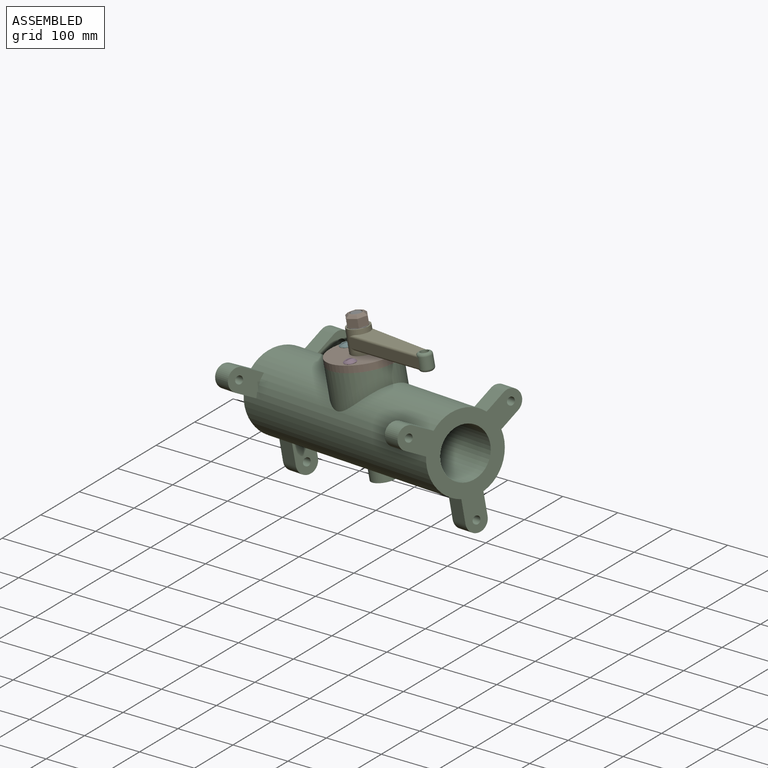
[diagram: assembled view]
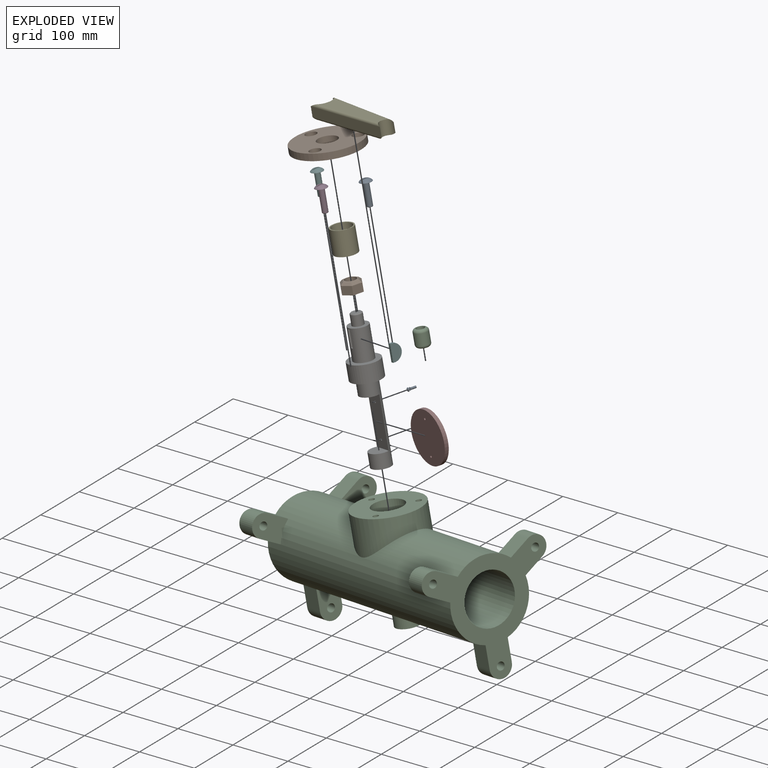
[diagram: exploded view]
GUIDED TOUR — MATED ASSEMBLY (Onshape document 84aa698ae4962fbbdf30fc7e, AutoMate assembly 84aa698ae4962fbbdf30fc7e_3a465f6433ac086dd8a9a052_34221dd035e977e115cf0c7b_default)

This assembly has 14 components, labeled P0..P13 below (a component is one placed occurrence of a part; the same part can appear more than once), held together by 12 mates. A mate is a constraint between two components; its type names the relative motion it leaves free:
  FASTENED — locks the two components together rigidly (no relative motion),
  REVOLUTE — leaves rotation about the listed axis free (a hinge).
Axis/direction vectors are unit vectors and 'through' points are millimeter coordinates, both in the assembly's world frame.

MATES
  1. FASTENED "Fastened 7": P13 <-> P6, direction (-0.916, 0.360, -0.177) through (316.12, 89.36, -572.98) mm
  2. REVOLUTE "Revolute 1": P6 <-> P10, axis (0.189, 0.000, -0.982) through (361.50, 98.34, -775.70) mm
  3. FASTENED "Fastened 5": P4 <-> P12, direction (0.189, 0.000, -0.982) through (323.03, 98.34, -576.38) mm
  4. FASTENED "Fastened 3": P3 <-> P6, direction (0.354, 0.933, 0.068) through (358.72, 110.99, -735.50) mm
  5. FASTENED "Fastened 9": P6 <-> P4, direction (-0.189, 0.000, 0.982) through (318.86, 98.34, -554.78) mm
  6. FASTENED "Fastened 11": P0 <-> P10, direction (0.189, 0.000, -0.982) through (371.18, 125.51, -628.19) mm
  7. FASTENED "Fastened 12": P5 <-> P10, direction (0.189, 0.000, -0.982) through (293.07, 114.54, -643.27) mm
  8. FASTENED "Fastened 13": P11 <-> P10, direction (0.189, 0.000, -0.982) through (343.69, 52.96, -633.50) mm
  9. FASTENED "Fastened 8": P9 <-> P10, direction (0.189, 0.000, -0.982) through (329.17, 98.33, -608.80) mm
  10. FASTENED "Fastened 1": P8 <-> P6, direction (0.354, 0.933, 0.068) through (347.35, 110.99, -676.59) mm
  11. FASTENED "Fastened 6": P2 <-> P12, direction (0.189, 0.000, -0.982) through (487.29, 33.77, -544.68) mm
  12. FASTENED "Fastened 10": P1 <-> P6, direction (0.189, 0.000, -0.982) through (318.86, 98.34, -554.78) mm

ASSEMBLY ORDER
  1. P6 — the base component [order heuristic]
  2. P9 — core [order heuristic]
  3. P10 — core [order heuristic]
  4. P7 — core [order heuristic]
  5. P4 — core [order heuristic]
  6. P13 — core [order heuristic]
  7. P12 [order verified]
  8. P3 [order verified]
  9. P8 [order verified]
  10. P5 [order verified]
  11. P0 [order verified]
  12. P11 [order verified]
  13. P2 [order verified]
  14. P1 — core [order heuristic]
(P3, P8 verified with a relaxed clearance tolerance: the source model stores slight part interference there.)
Order-tag legend:
  [order verified] — this step's position reverses a verified removal order: the component was checked to insert without passing through the ones already placed.
  [order heuristic] — the first 7 components form the assembly's core: parts whose collision-free extraction could not be verified, listed in mate-graph order.

Of the 14 components, 3 carry the full construction recipe — the FeatureScript program that regenerates the part's solid from scratch; the rest are supplied as boundary geometry only.
Because this assembly has more than 12 components, the tour below covers the 12 most significant ones individually (every recipe-attached component first, then the largest by part volume), in assembly order; the remaining 2 are summarized together in a grouped section at the end.
Each toured component is shown spotlighted twice — in the assembled view, then in the exploded view, where a leader line traces a displaced component back to its assembled socket (saturated green if recipe-attached, orange if geometry-only; every other component desaturated gray) — followed by its recipe or geometry summary and the mates that hold it.
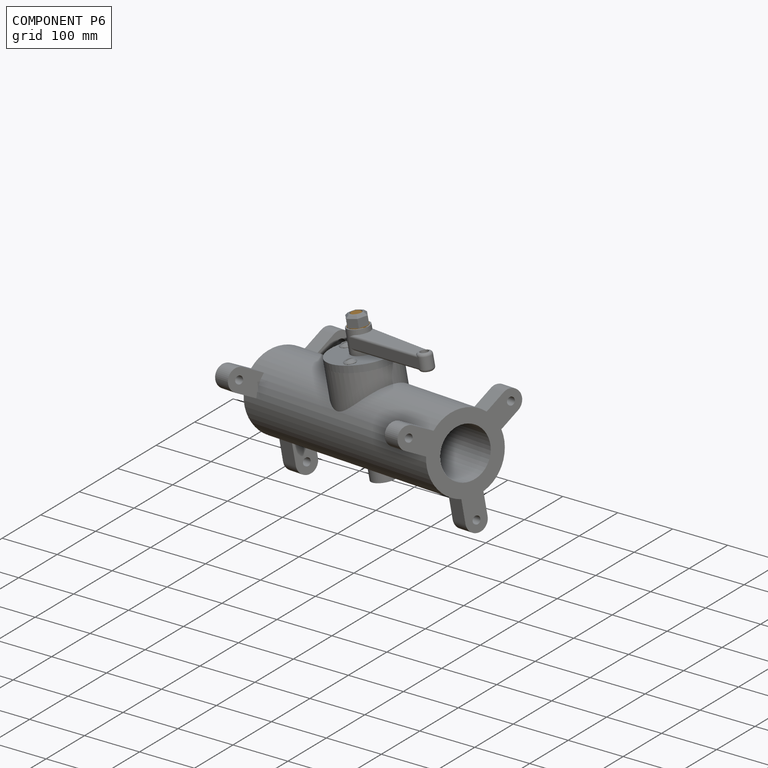
[diagram: component P6 — assembled]
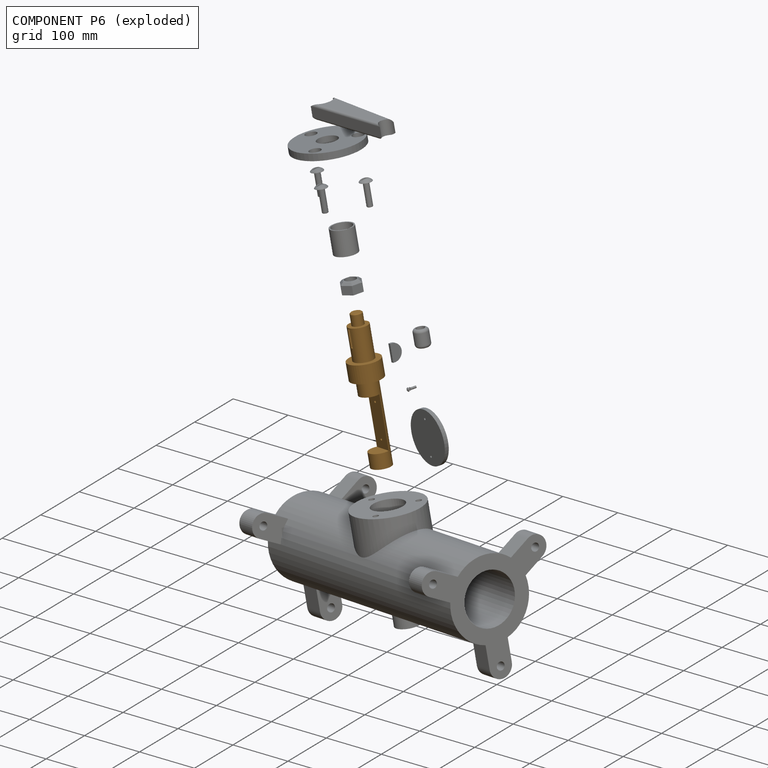
[diagram: component P6 — exploded]
COMPONENT P6 — geometry summary (no construction recipe available for this part):
  bounding box: 245.0 x 55.0 x 55.0 mm
  B-rep topology: 1 solid, 20 faces, 84 edges
  volume: 198194 mm^3 (27% of its bounding box)
  symmetry: mirror-symmetric across its z mid-plane
Held by: FASTENED mate "Fastened 7" to P13; REVOLUTE mate "Revolute 1" to P10; FASTENED mate "Fastened 3" to P3; FASTENED mate "Fastened 9" to P4; FASTENED mate "Fastened 1" to P8; FASTENED mate "Fastened 10" to P1.
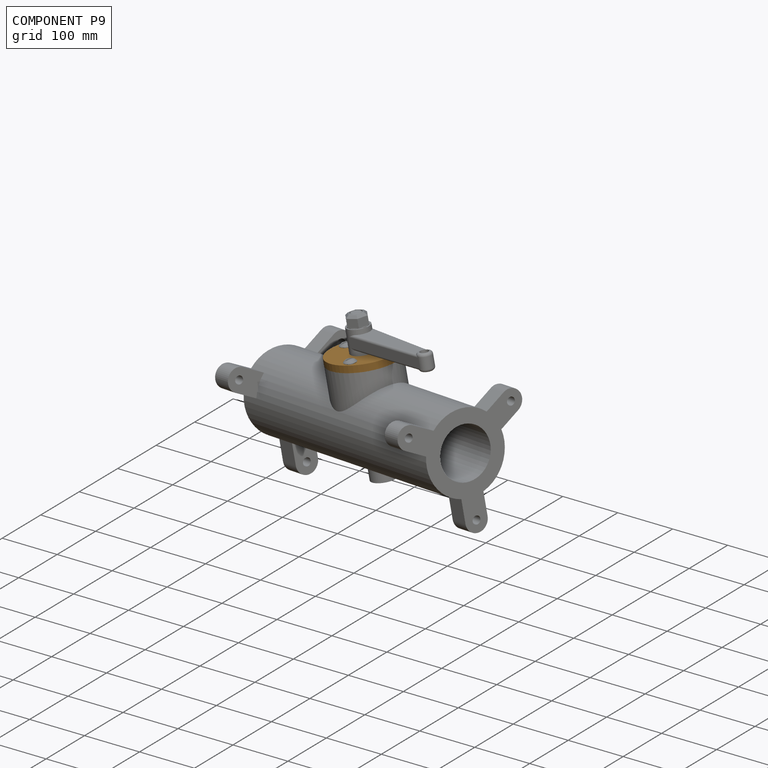
[diagram: component P9 — assembled]
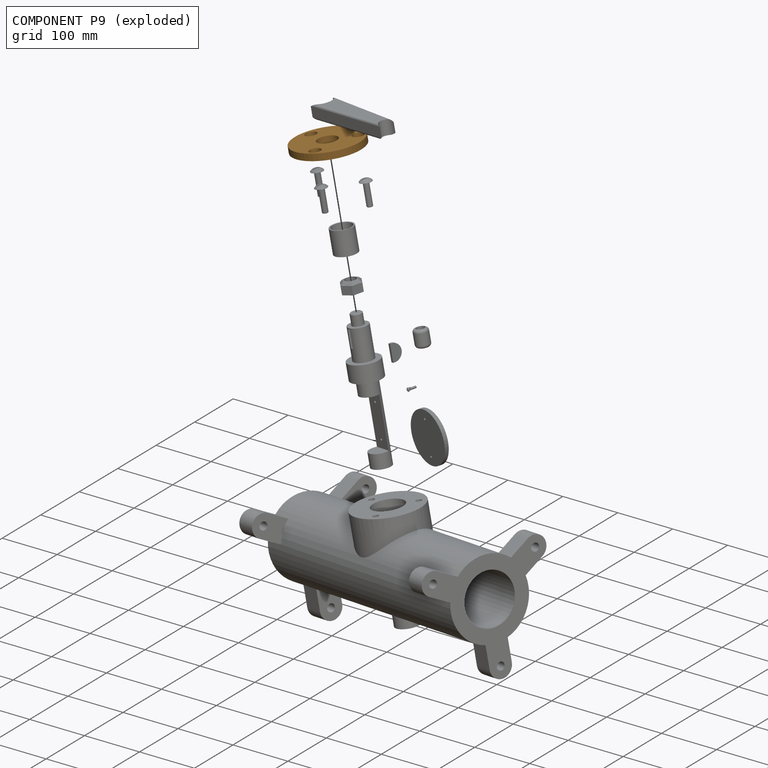
[diagram: component P9 — exploded]
COMPONENT P9 — geometry summary (no construction recipe available for this part):
  bounding box: 120.0 x 120.0 x 12.0 mm
  B-rep topology: 1 solid, 7 faces, 30 edges
  volume: 112862 mm^3 (65% of its bounding box)
  symmetry: 2-fold rotationally symmetric about the x axis; mirror-symmetric across its y mid-plane, z mid-plane
Held by: FASTENED mate "Fastened 8" to P10.
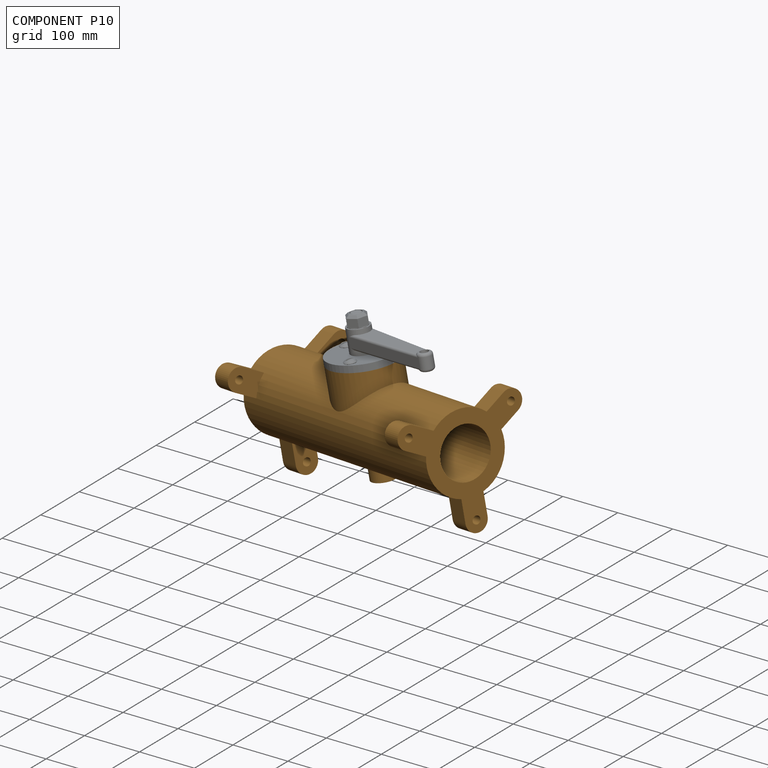
[diagram: component P10 — assembled]
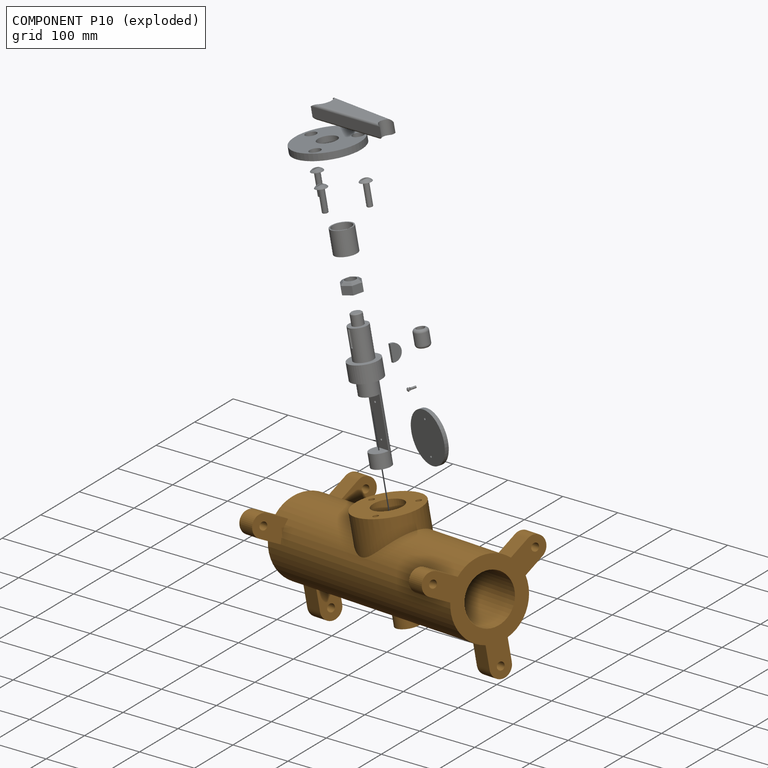
[diagram: component P10 — exploded]
COMPONENT P10 — geometry summary (no construction recipe available for this part):
  bounding box: 500.0 x 226.6 x 224.7 mm
  B-rep topology: 1 solid, 48 faces, 262 edges
  volume: 5248739 mm^3 (21% of its bounding box)
  symmetry: mirror-symmetric across its z mid-plane
Held by: REVOLUTE mate "Revolute 1" to P6; FASTENED mate "Fastened 11" to P0; FASTENED mate "Fastened 12" to P5; FASTENED mate "Fastened 13" to P11; FASTENED mate "Fastened 8" to P9.
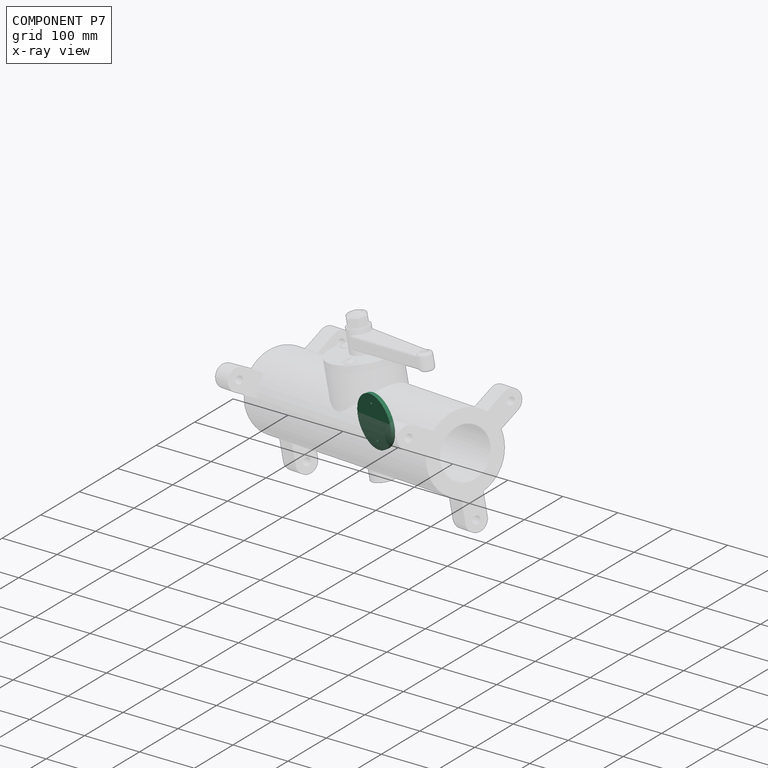
[diagram: component P7 — x-ray view]
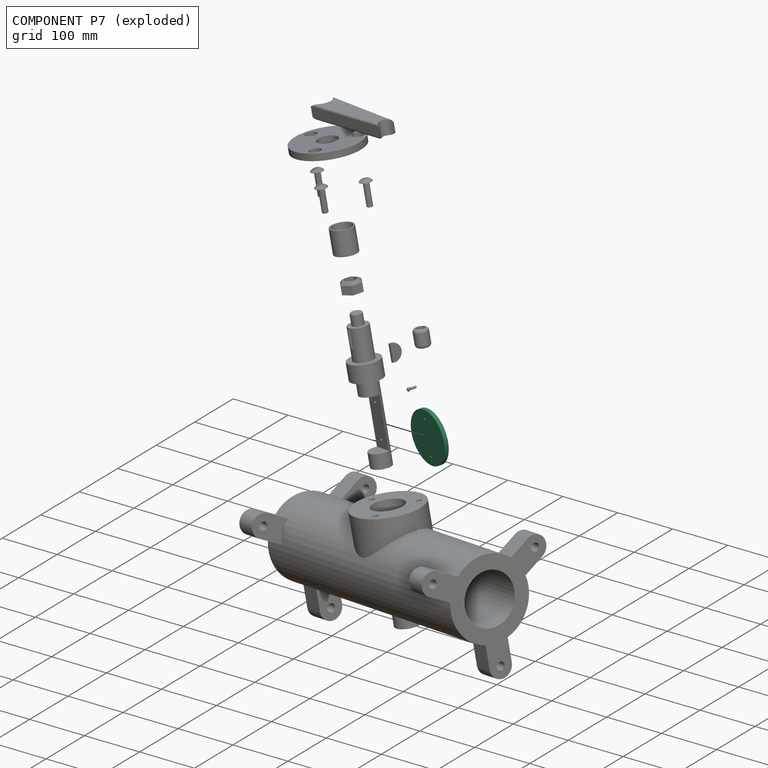
[diagram: component P7 — exploded]
COMPONENT P7 — recipe-attached (CADFS 00137516, mesh-verified: the recipe's output STEP matches this component's geometry to below the mesh-comparison resolution (tessellation chordal tolerance ~0.191 mm)).
Held by: no mates (free).
Construction recipe (FeatureScript — the CAD program that rebuilds this solid; sketch coordinates are in the units given by the * unit suffixes, e.g. mm):

FeatureScript 1549;
import(path : "onshape/std/geometry.fs", version : "1549.0");
import(path : "onshape/std/common.fs", version : "1549.0");
const mm = millimeter;
const VERTEX = EntityType.VERTEX;
const EDGE = EntityType.EDGE;
const FACE = EntityType.FACE;
const BODY = EntityType.BODY;
function v(x, y){return vector(x, y);}
function OD(order){return orderDisambiguation(order);}
function OSD(set){return originalSetDisambiguation(set);}
function TD(topology){return topologyDisambiguation(topology);}
function TDD(query){return trueDependencyDisambiguation(query);}
function sQuery(a, b, c) {return sketchEntityQuery(a, b, c);}

annotation { "Feature Type Name" : "Feature", "Feature Type Description" : "" }
export const myFeature = defineFeature(function(context is Context, id is Id, definition is map)
    precondition{}
    {
        {
            var Q0;
            Q0=qCreatedBy(makeId("Front.planeOp"),FACE);
            var sketch = newSketch(context, id + "F0", { "sketchPlane" : qUnion([Q0])});
            skCircle(sketch, "E0", {"center": v(0, 0) * mm, "radius": 45 * mm});
            skLineSegment(sketch, "E1", {"start": v(-28, 0) * mm, "end": v(-30, 0) * mm});
            skCircle(sketch, "E2", {"center": v(-30, 0) * mm, "radius": 2 * mm});
            skCircle(sketch, "E3", {"center": v(30, 0) * mm, "radius": 2 * mm});
            skLineSegment(sketch, "E4.trimOffspring", {"start": v(28, 0) * mm, "end": v(30, 0) * mm});
            skLineSegment(sketch, "E5", {"start": v(-45, 0) * mm, "end": v(45, 0) * mm});
            skSolve(sketch);
        }
        {
            var Q0;
            {var subQ0=sQuery(id+"F0.wireOp",EDGE,"E5");var subQ1=sQuery(id+"F0.wireOp",EDGE,"E0");var subQ2=makeQuery(id+"F0.imprint","INTERSECT",VERTEX,{"disambiguationData":[OD(0.0)],"derivedFrom":[subQ1,subQ0]});Q0=makeQuery(id+"F0.imprint","IMPRINT",FACE,{"disambiguationData":[TD([[makeQuery(id+"F0.imprint","IMPRINT",EDGE,{"disambiguationData":[TD([[subQ2,1.0]])],"derivedFrom":subQ1}),1.0]])]});}
            var Q1;
            {var subQ0=sQuery(id+"F0.wireOp",EDGE,"E5");var subQ1=sQuery(id+"F0.wireOp",EDGE,"E0");var subQ2=makeQuery(id+"F0.imprint","INTERSECT",VERTEX,{"disambiguationData":[OD(0.0)],"derivedFrom":[subQ1,subQ0]});Q1=makeQuery(id+"F0.imprint","IMPRINT",FACE,{"disambiguationData":[TD([[makeQuery(id+"F0.imprint","IMPRINT",EDGE,{"disambiguationData":[TD([[subQ2,-1.0]])],"derivedFrom":subQ1}),1.0]])]});}
            extrude(context, id + "F1", {"entities" : qUnion([Q0, Q1]), "depth" : 7 * mm, "symmetric" : true});
        }
    });
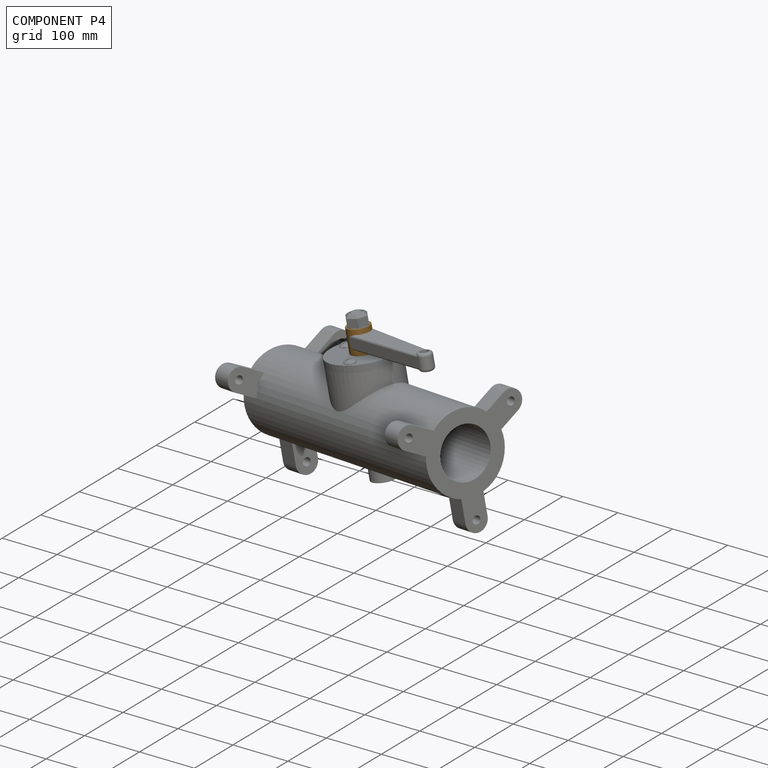
[diagram: component P4 — assembled]
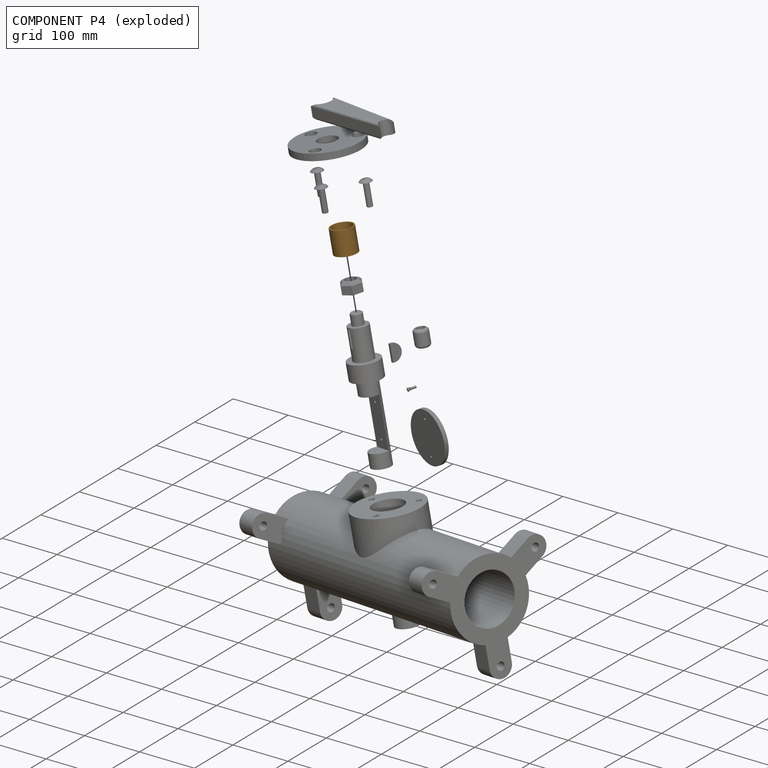
[diagram: component P4 — exploded]
COMPONENT P4 — geometry summary (no construction recipe available for this part):
  bounding box: 42.0 x 40.0 x 40.0 mm
  B-rep topology: 1 solid, 10 faces, 48 edges
  volume: 12041 mm^3 (18% of its bounding box)
  symmetry: 2-fold rotationally symmetric about the x axis; mirror-symmetric across its y mid-plane, z mid-plane
Held by: FASTENED mate "Fastened 5" to P12; FASTENED mate "Fastened 9" to P6.
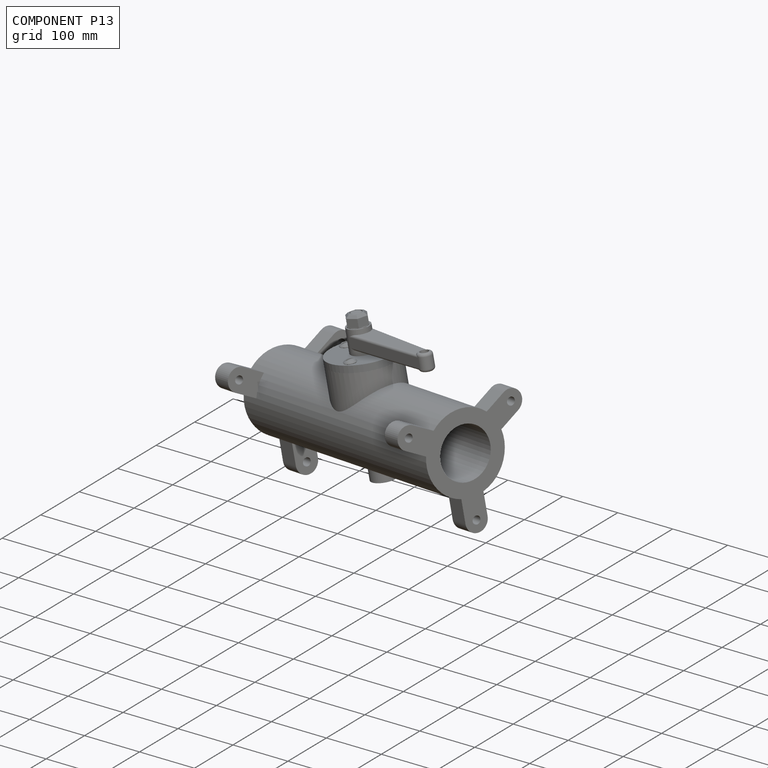
[diagram: component P13 — assembled]
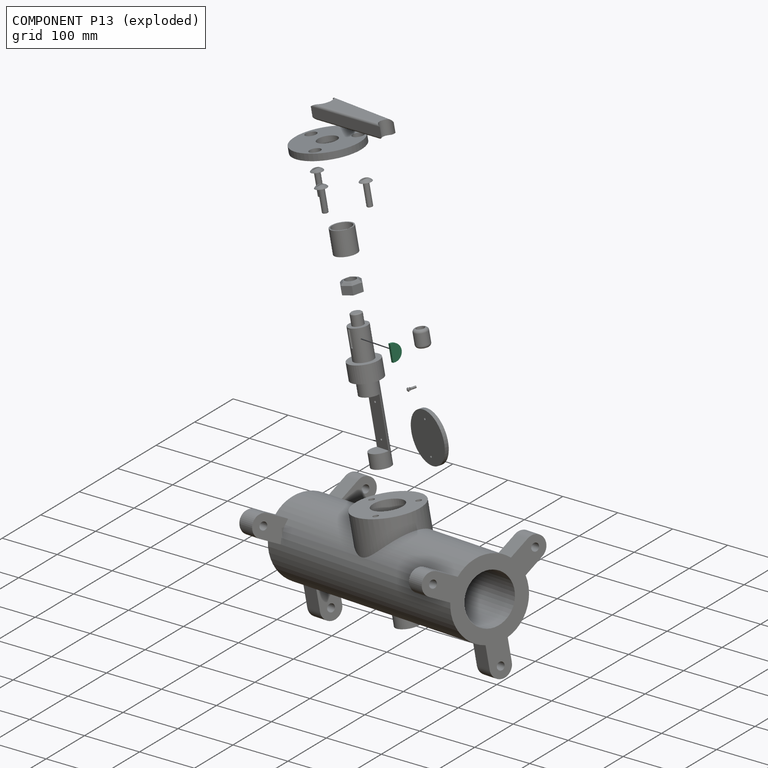
[diagram: component P13 — exploded]
COMPONENT P13 — recipe-attached (CADFS 00137511, mesh-verified: the recipe's output STEP matches this component's geometry to below the mesh-comparison resolution (tessellation chordal tolerance ~0.053 mm)).
Held by: FASTENED mate "Fastened 7" to P6.
Construction recipe (FeatureScript — the CAD program that rebuilds this solid; sketch coordinates are in the units given by the * unit suffixes, e.g. mm):

FeatureScript 1549;
import(path : "onshape/std/geometry.fs", version : "1549.0");
import(path : "onshape/std/common.fs", version : "1549.0");
const mm = millimeter;
const VERTEX = EntityType.VERTEX;
const EDGE = EntityType.EDGE;
const FACE = EntityType.FACE;
const BODY = EntityType.BODY;
function v(x, y){return vector(x, y);}
function OD(order){return orderDisambiguation(order);}
function OSD(set){return originalSetDisambiguation(set);}
function TD(topology){return topologyDisambiguation(topology);}
function TDD(query){return trueDependencyDisambiguation(query);}
function sQuery(a, b, c) {return sketchEntityQuery(a, b, c);}

annotation { "Feature Type Name" : "Feature", "Feature Type Description" : "" }
export const myFeature = defineFeature(function(context is Context, id is Id, definition is map)
    precondition{}
    {
        {
            var Q0;
            Q0=qCreatedBy(makeId("Front.planeOp"),FACE);
            var sketch = newSketch(context, id + "F0", { "sketchPlane" : qUnion([Q0])});
            skLineSegment(sketch, "E0", {"start": v(0, 0) * mm, "end": v(15, 0) * mm});
            skLineSegment(sketch, "E1", {"start": v(15, 0) * mm, "end": v(-15, 0) * mm});
            skLineSegment(sketch, "E2", {"start": v(-15, 0) * mm, "end": v(-15, 3) * mm});
            skLineSegment(sketch, "E3", {"start": v(-15, 3) * mm, "end": v(15, 3) * mm});
            skLineSegment(sketch, "E4", {"start": v(15, 3) * mm, "end": v(15, 0) * mm});
            skArc(sketch, "E5", {"start": v(-15, 0) * mm, "mid": v(0, -15) * mm, "end": v(15, 0) * mm});
            skSolve(sketch);
        }
        {
            var Q0;
            Q0 = qSketchRegion(id + "F0", true);
            extrude(context, id + "F1", {"entities" : qUnion([Q0]), "depth" : 5 * mm, "symmetric" : true});
        }
    });
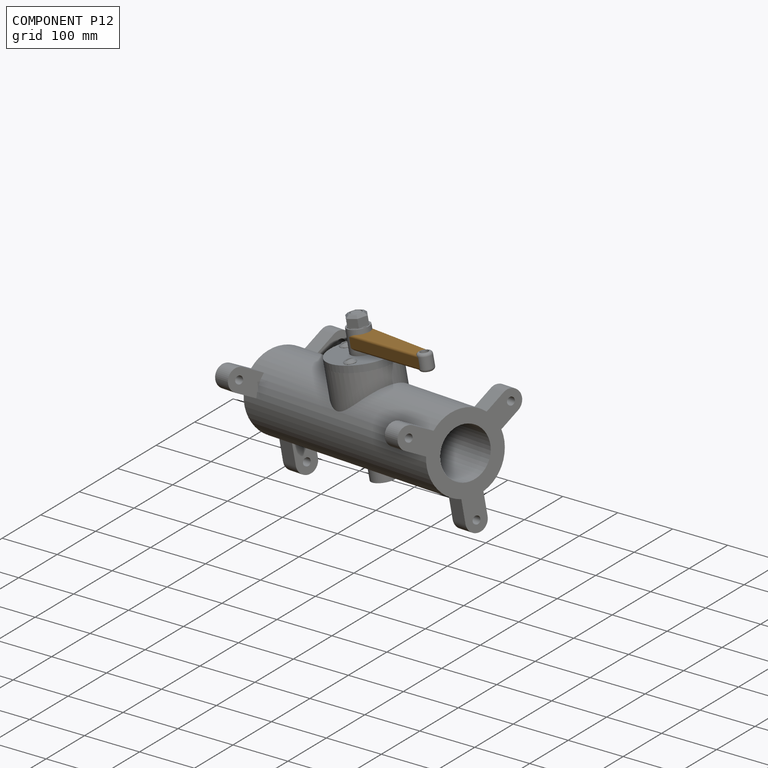
[diagram: component P12 — assembled]
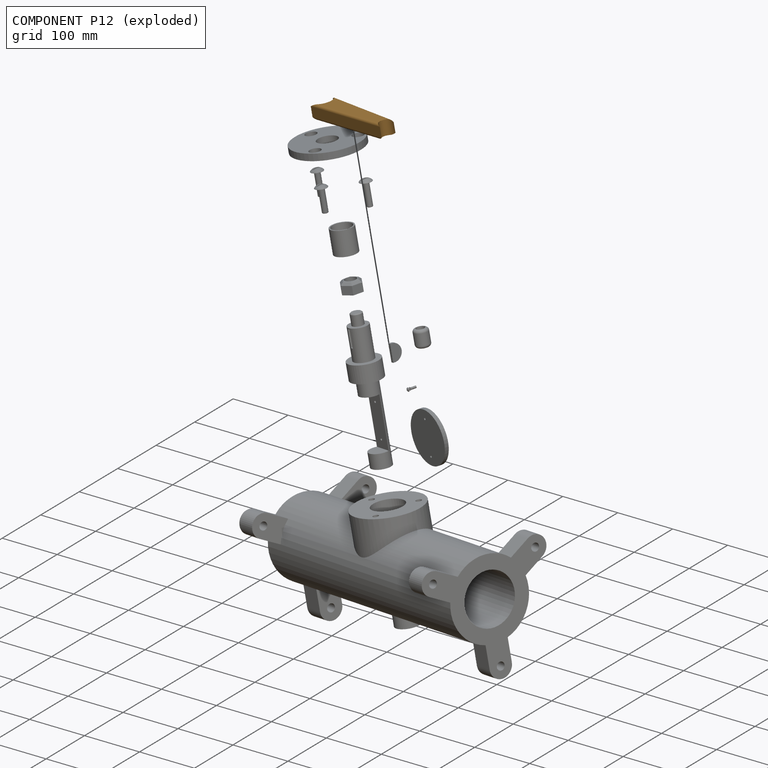
[diagram: component P12 — exploded]
COMPONENT P12 — geometry summary (no construction recipe available for this part):
  bounding box: 178.3 x 39.9 x 25.0 mm
  B-rep topology: 1 solid, 10 faces, 48 edges
  volume: 121575 mm^3 (68% of its bounding box)
  symmetry: 2-fold rotationally symmetric about the x axis; mirror-symmetric across its y mid-plane, z mid-plane
Held by: FASTENED mate "Fastened 5" to P4; FASTENED mate "Fastened 6" to P2.
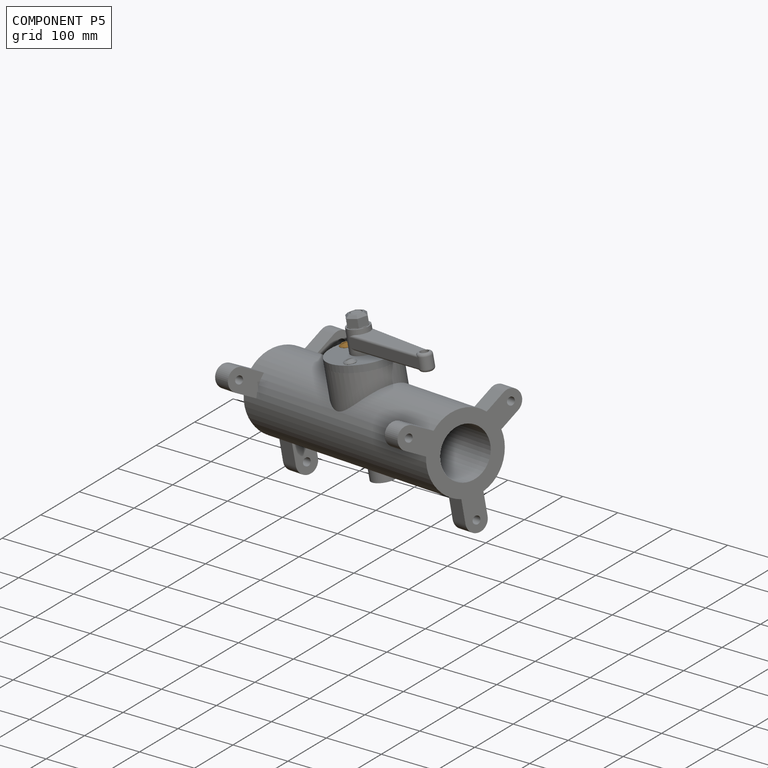
[diagram: component P5 — assembled]
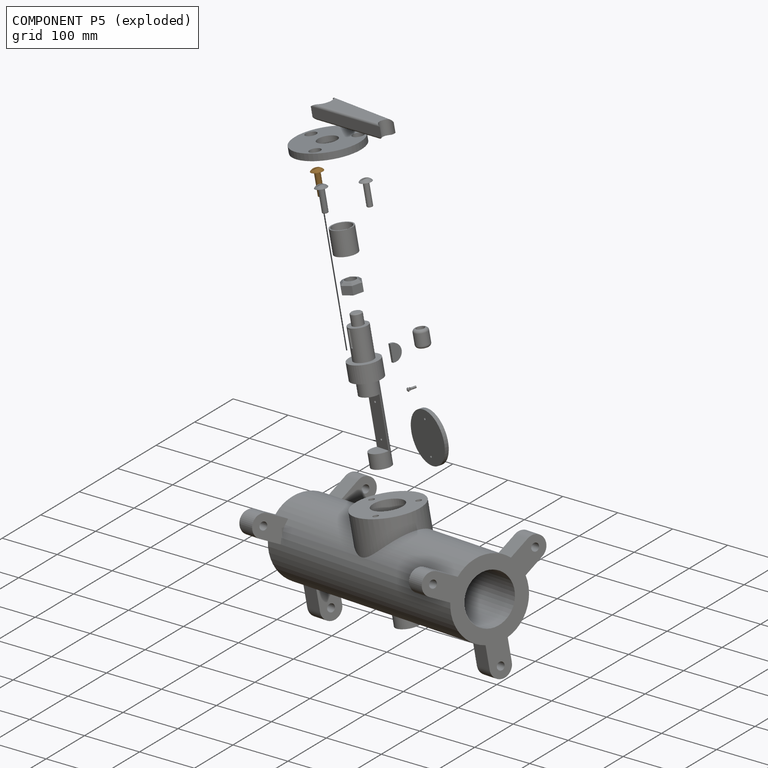
[diagram: component P5 — exploded]
COMPONENT P5 — geometry summary (no construction recipe available for this part):
  bounding box: 45.0 x 21.7 x 21.7 mm
  B-rep topology: 1 solid, 9 faces, 34 edges
  volume: 4163 mm^3 (20% of its bounding box)
  symmetry: 2-fold rotationally symmetric about the x axis; mirror-symmetric across its y mid-plane, z mid-plane
Held by: FASTENED mate "Fastened 12" to P10.
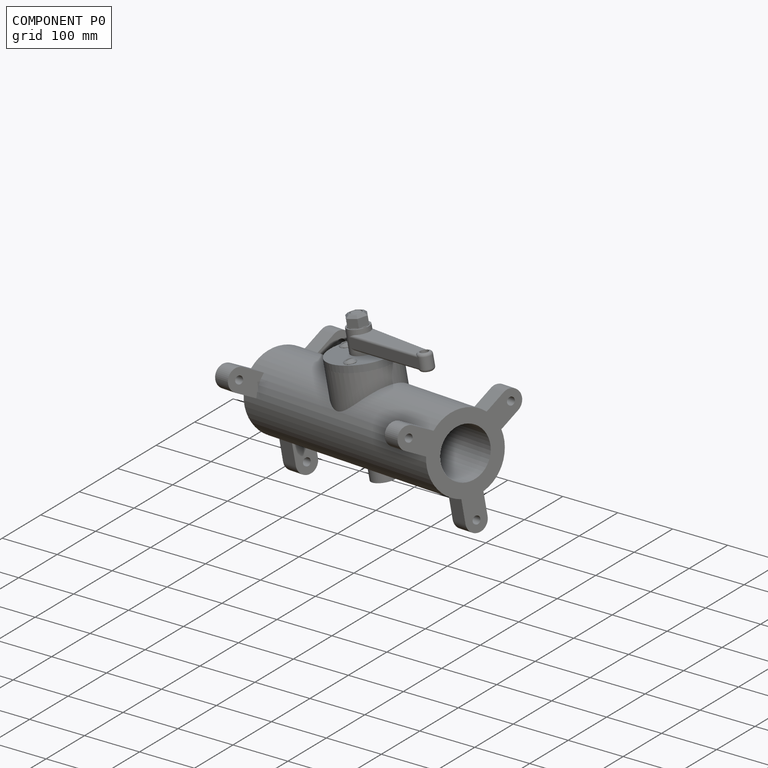
[diagram: component P0 — assembled]
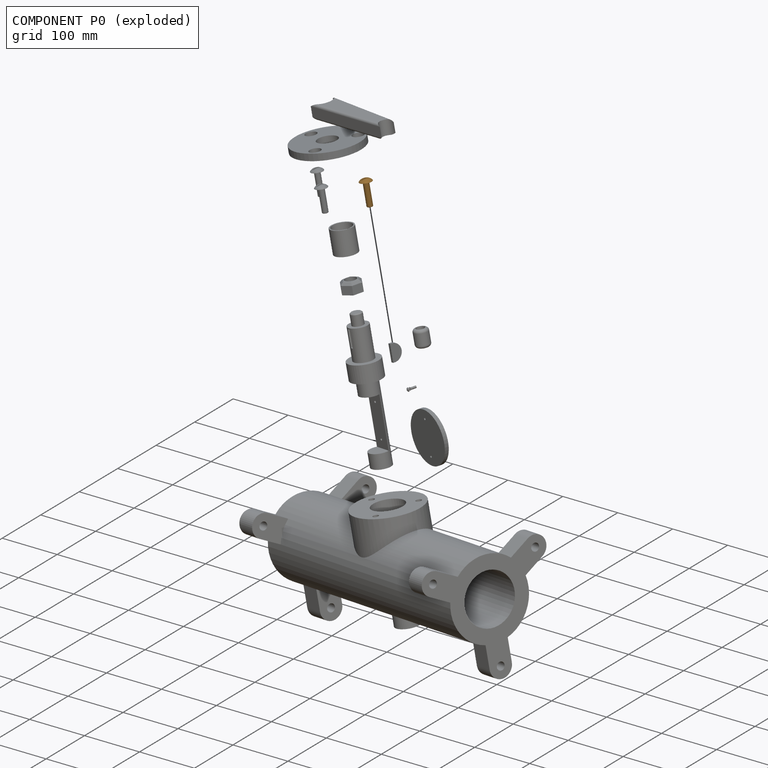
[diagram: component P0 — exploded]
COMPONENT P0 — geometry summary (no construction recipe available for this part):
  bounding box: 45.0 x 21.7 x 21.7 mm
  B-rep topology: 1 solid, 9 faces, 34 edges
  volume: 4163 mm^3 (20% of its bounding box)
  symmetry: 2-fold rotationally symmetric about the x axis; mirror-symmetric across its y mid-plane, z mid-plane
Held by: FASTENED mate "Fastened 11" to P10.
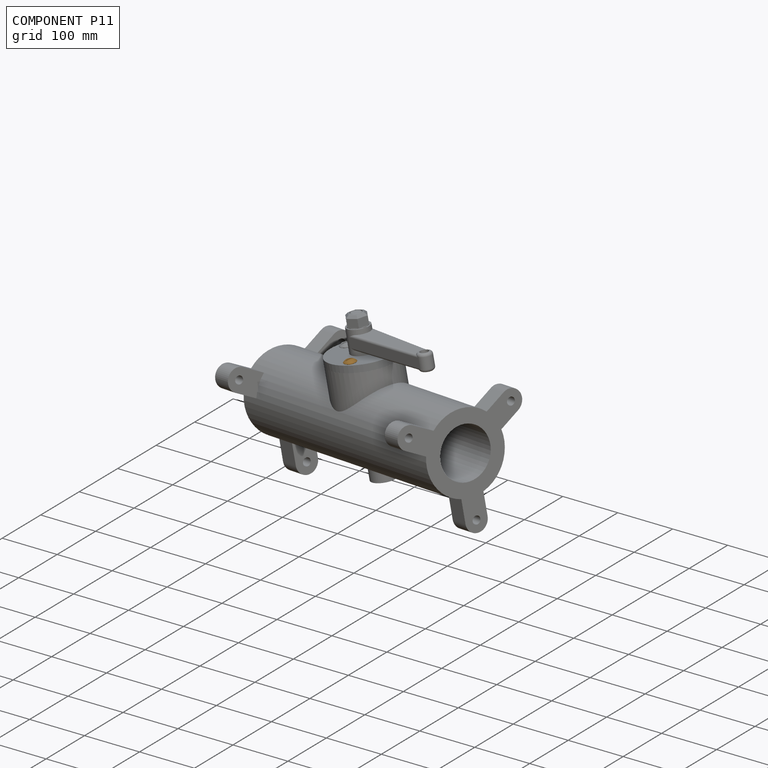
[diagram: component P11 — assembled]
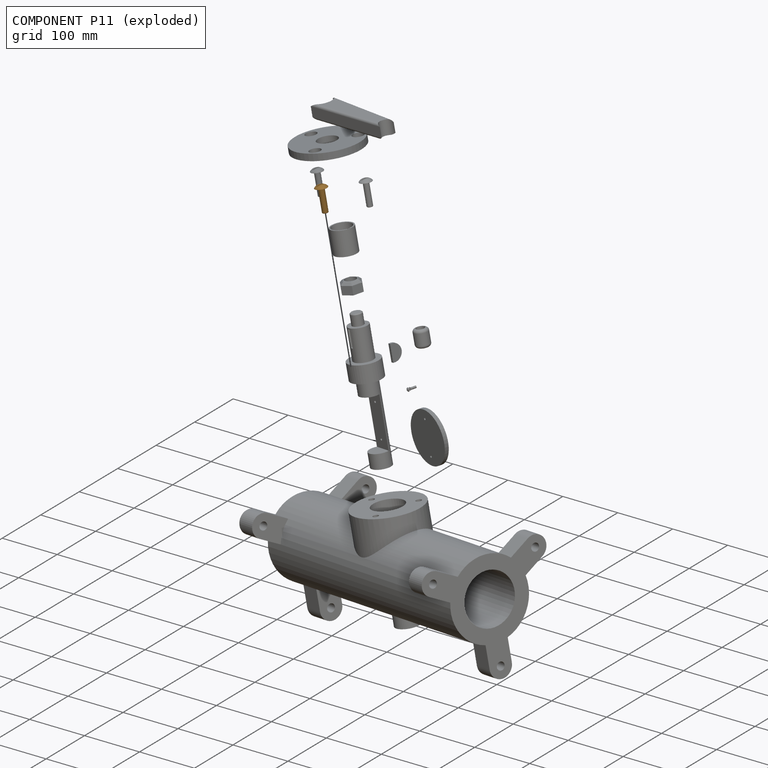
[diagram: component P11 — exploded]
COMPONENT P11 — geometry summary (no construction recipe available for this part):
  bounding box: 45.0 x 21.7 x 21.7 mm
  B-rep topology: 1 solid, 9 faces, 34 edges
  volume: 4163 mm^3 (20% of its bounding box)
  symmetry: 2-fold rotationally symmetric about the x axis; mirror-symmetric across its y mid-plane, z mid-plane
Held by: FASTENED mate "Fastened 13" to P10.
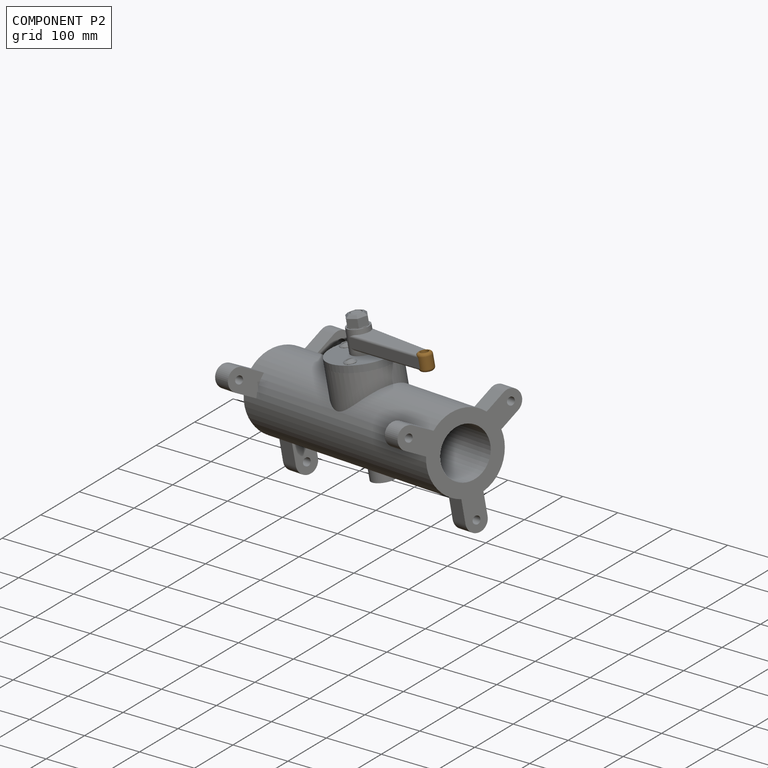
[diagram: component P2 — assembled]
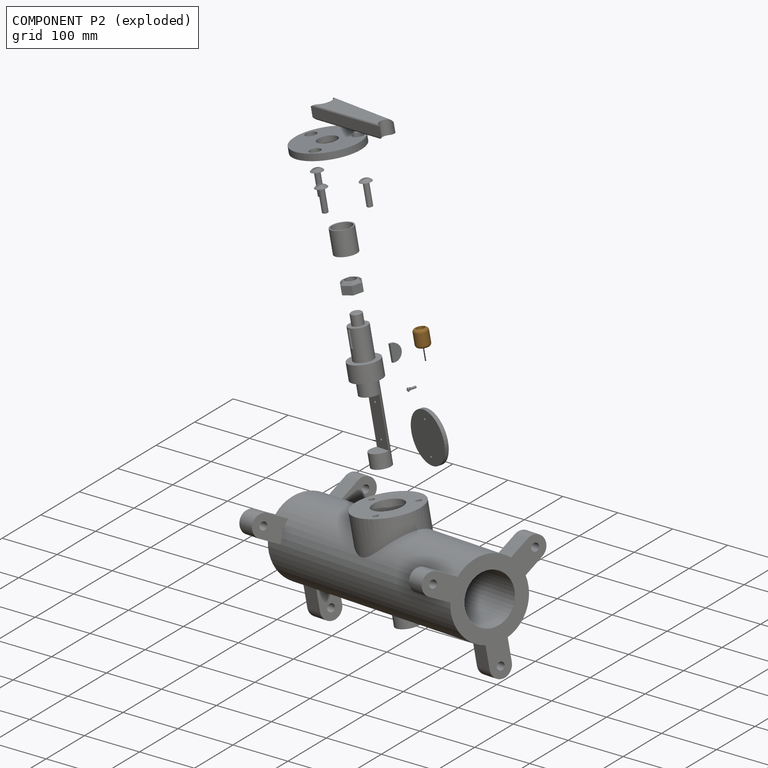
[diagram: component P2 — exploded]
COMPONENT P2 — geometry summary (no construction recipe available for this part):
  bounding box: 30.0 x 27.1 x 27.1 mm
  B-rep topology: 1 solid, 4 faces, 20 edges
  volume: 8657 mm^3 (39% of its bounding box)
  symmetry: 2-fold rotationally symmetric about the x axis; revolution-symmetric about the y axis through its bounding-box center; 2-fold rotationally symmetric about the z axis; mirror-symmetric across its x mid-plane, y mid-plane, z mid-plane
Held by: FASTENED mate "Fastened 6" to P12.
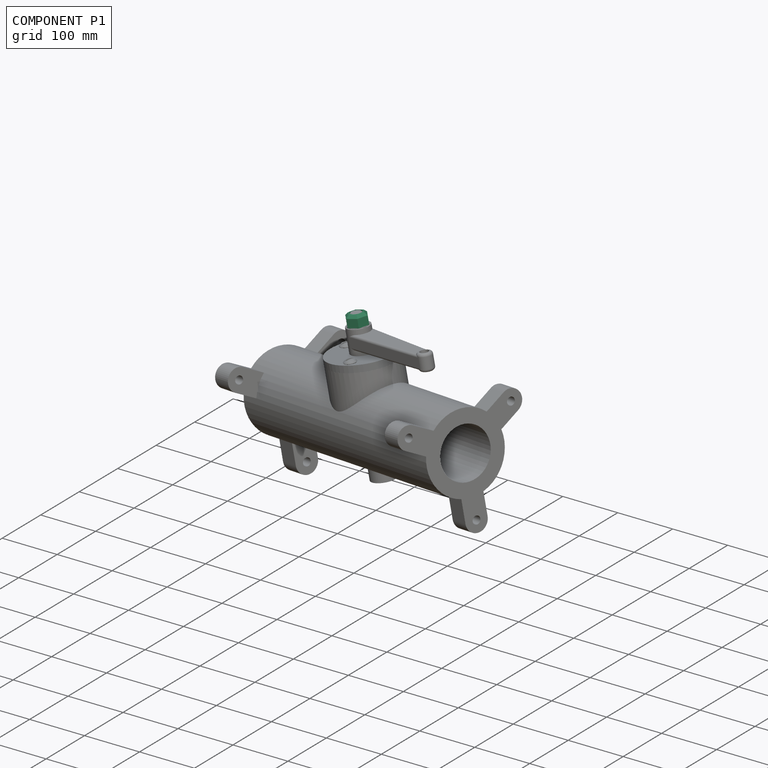
[diagram: component P1 — assembled]
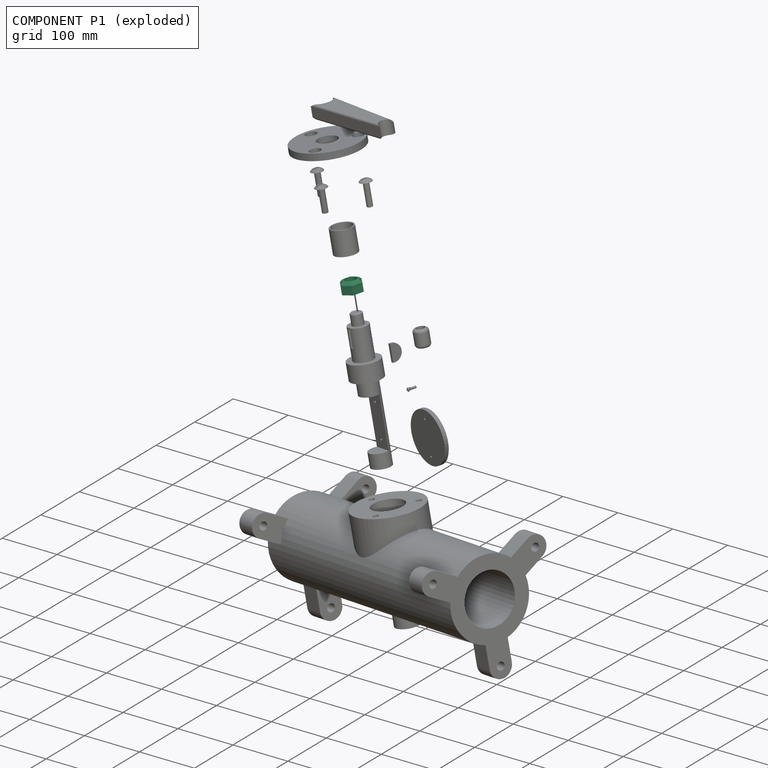
[diagram: component P1 — exploded]
COMPONENT P1 — recipe-attached (CADFS 00137517, mesh-verified: the recipe's output STEP matches this component's geometry to below the mesh-comparison resolution (tessellation chordal tolerance ~0.0811 mm)).
Held by: FASTENED mate "Fastened 10" to P6.
Construction recipe (FeatureScript — the CAD program that rebuilds this solid; sketch coordinates are in the units given by the * unit suffixes, e.g. mm):

FeatureScript 1549;
import(path : "onshape/std/geometry.fs", version : "1549.0");
import(path : "onshape/std/common.fs", version : "1549.0");
const mm = millimeter;
const VERTEX = EntityType.VERTEX;
const EDGE = EntityType.EDGE;
const FACE = EntityType.FACE;
const BODY = EntityType.BODY;
function v(x, y){return vector(x, y);}
function OD(order){return orderDisambiguation(order);}
function OSD(set){return originalSetDisambiguation(set);}
function TD(topology){return topologyDisambiguation(topology);}
function TDD(query){return trueDependencyDisambiguation(query);}
function sQuery(a, b, c) {return sketchEntityQuery(a, b, c);}

annotation { "Feature Type Name" : "Feature", "Feature Type Description" : "" }
export const myFeature = defineFeature(function(context is Context, id is Id, definition is map)
    precondition{}
    {
        {
            var Q0;
            Q0=qCreatedBy(makeId("Front.planeOp"),FACE);
            var sketch = newSketch(context, id + "F0", { "sketchPlane" : qUnion([Q0])});
            skPoint(sketch, "E0.middle", {"position": v(0, 0) * mm});
            skArc(sketch, "E1", {"start": v(9.95, 1) * mm, "mid": v(-10, 0) * mm, "end": v(9.95, -1) * mm});
            skLineSegment(sketch, "E2.0", {"start": v(9.52, -16.34) * mm, "end": v(-9.4, -16.41) * mm});
            skLineSegment(sketch, "E2.1", {"start": v(-9.4, -16.41) * mm, "end": v(-18.9, -0.07) * mm});
            skLineSegment(sketch, "E2.2", {"start": v(-18.9, -0.07) * mm, "end": v(-9.52, 16.34) * mm});
            skLineSegment(sketch, "E2.3", {"start": v(-9.52, 16.34) * mm, "end": v(9.4, 16.41) * mm});
            skLineSegment(sketch, "E2.4", {"start": v(9.4, 16.41) * mm, "end": v(19.1, 0.03) * mm});
            skLineSegment(sketch, "E2.5", {"start": v(19.1, 0.03) * mm, "end": v(9.52, -16.34) * mm});
            skLineSegment(sketch, "E3.bottom", {"start": v(9.95, -1) * mm, "end": v(11.5, -1) * mm});
            skLineSegment(sketch, "E3.top", {"start": v(9.95, 1) * mm, "end": v(11.5, 1) * mm});
            skLineSegment(sketch, "E3.right", {"start": v(11.5, -1) * mm, "end": v(11.5, 1) * mm});
            skPoint(sketch, "E3.middle", {"position": v(10, 0) * mm});
            skPoint(sketch, "E4.orphan", {"position": v(8.5, 1) * mm});
            skPoint(sketch, "E5.orphan", {"position": v(8.5, -1) * mm});
            skLineSegment(sketch, "E6", {"start": v(9.95, 1) * mm, "end": v(9.95, -1) * mm});
            skSolve(sketch);
        }
        {
            var Q0;
            Q0 = qSketchRegion(id + "F0", true);
            extrude(context, id + "F1", {"entities" : qUnion([Q0]), "depth" : 20 * mm, "symmetric" : true});
        }
        {
            var Q0;
            Q0=makeQuery(id+"F1.opExtrude","CAP_EDGE",EDGE,{"disambiguationData":[OSD([sQuery(id+"F0.wireOp",EDGE,"E2.2")])],"isStart":false});
            var Q1;
            Q1=makeQuery(id+"F1.opExtrude","CAP_EDGE",EDGE,{"disambiguationData":[OSD([sQuery(id+"F0.wireOp",EDGE,"E2.1")])],"isStart":false});
            var Q2;
            Q2=makeQuery(id+"F1.opExtrude","CAP_EDGE",EDGE,{"disambiguationData":[OSD([sQuery(id+"F0.wireOp",EDGE,"E2.4")])],"isStart":false});
            var Q3;
            Q3=makeQuery(id+"F1.opExtrude","CAP_EDGE",EDGE,{"disambiguationData":[OSD([sQuery(id+"F0.wireOp",EDGE,"E2.0")])],"isStart":false});
            var Q4;
            Q4=makeQuery(id+"F1.opExtrude","CAP_EDGE",EDGE,{"disambiguationData":[OSD([sQuery(id+"F0.wireOp",EDGE,"E2.5")])],"isStart":false});
            var Q5;
            Q5=makeQuery(id+"F1.opExtrude","CAP_EDGE",EDGE,{"disambiguationData":[OSD([sQuery(id+"F0.wireOp",EDGE,"E2.3")])],"isStart":false});
            chamfer(context, id + "F2", {"entities" : qUnion([Q0, Q1, Q2, Q3, Q4, Q5]), "width" : 5 * mm, "tangentPropagation" : true});
        }
        {
            var Q0;
            {var subQ0=sQuery(id+"F0.wireOp",EDGE,"E2.2");Q0=makeQuery(id+"F2.opChamfer","BLEND_EDGE",EDGE,{"blendedFrom":[makeQuery(id+"F1.opExtrude","CAP_EDGE",EDGE,{"disambiguationData":[OSD([subQ0])],"isStart":false}),makeQuery(id+"F1.opExtrude","CAP_FACE",FACE,{"disambiguationData":[OSD([sQuery(id+"F0.wireOp",EDGE,"E1"),sQuery(id+"F0.wireOp",EDGE,"E2.0"),sQuery(id+"F0.wireOp",EDGE,"E2.1"),subQ0,sQuery(id+"F0.wireOp",EDGE,"E2.3"),sQuery(id+"F0.wireOp",EDGE,"E2.4"),sQuery(id+"F0.wireOp",EDGE,"E2.5")])],"isStart":false})],"blendedInto":[makeQuery(id+"F1.opExtrude","CAP_FACE",FACE,{"disambiguationData":[OSD([sQuery(id+"F0.wireOp",EDGE,"E1"),sQuery(id+"F0.wireOp",EDGE,"E2.0"),sQuery(id+"F0.wireOp",EDGE,"E2.1"),subQ0,sQuery(id+"F0.wireOp",EDGE,"E2.3"),sQuery(id+"F0.wireOp",EDGE,"E2.4"),sQuery(id+"F0.wireOp",EDGE,"E2.5")])],"isStart":false})]});}
            var Q1;
            {var subQ0=sQuery(id+"F0.wireOp",EDGE,"E2.1");Q1=makeQuery(id+"F2.opChamfer","BLEND_EDGE",EDGE,{"blendedFrom":[makeQuery(id+"F1.opExtrude","CAP_EDGE",EDGE,{"disambiguationData":[OSD([subQ0])],"isStart":false}),makeQuery(id+"F1.opExtrude","CAP_FACE",FACE,{"disambiguationData":[OSD([sQuery(id+"F0.wireOp",EDGE,"E1"),sQuery(id+"F0.wireOp",EDGE,"E2.0"),subQ0,sQuery(id+"F0.wireOp",EDGE,"E2.2"),sQuery(id+"F0.wireOp",EDGE,"E2.3"),sQuery(id+"F0.wireOp",EDGE,"E2.4"),sQuery(id+"F0.wireOp",EDGE,"E2.5")])],"isStart":false})],"blendedInto":[makeQuery(id+"F1.opExtrude","CAP_FACE",FACE,{"disambiguationData":[OSD([sQuery(id+"F0.wireOp",EDGE,"E1"),sQuery(id+"F0.wireOp",EDGE,"E2.0"),subQ0,sQuery(id+"F0.wireOp",EDGE,"E2.2"),sQuery(id+"F0.wireOp",EDGE,"E2.3"),sQuery(id+"F0.wireOp",EDGE,"E2.4"),sQuery(id+"F0.wireOp",EDGE,"E2.5")])],"isStart":false})]});}
            var Q2;
            {var subQ0=sQuery(id+"F0.wireOp",EDGE,"E2.3");Q2=makeQuery(id+"F2.opChamfer","BLEND_EDGE",EDGE,{"blendedFrom":[makeQuery(id+"F1.opExtrude","CAP_EDGE",EDGE,{"disambiguationData":[OSD([subQ0])],"isStart":false}),makeQuery(id+"F1.opExtrude","CAP_FACE",FACE,{"disambiguationData":[OSD([sQuery(id+"F0.wireOp",EDGE,"E1"),sQuery(id+"F0.wireOp",EDGE,"E2.0"),sQuery(id+"F0.wireOp",EDGE,"E2.1"),sQuery(id+"F0.wireOp",EDGE,"E2.2"),subQ0,sQuery(id+"F0.wireOp",EDGE,"E2.4"),sQuery(id+"F0.wireOp",EDGE,"E2.5")])],"isStart":false})],"blendedInto":[makeQuery(id+"F1.opExtrude","CAP_FACE",FACE,{"disambiguationData":[OSD([sQuery(id+"F0.wireOp",EDGE,"E1"),sQuery(id+"F0.wireOp",EDGE,"E2.0"),sQuery(id+"F0.wireOp",EDGE,"E2.1"),sQuery(id+"F0.wireOp",EDGE,"E2.2"),subQ0,sQuery(id+"F0.wireOp",EDGE,"E2.4"),sQuery(id+"F0.wireOp",EDGE,"E2.5")])],"isStart":false})]});}
            var Q3;
            {var subQ0=sQuery(id+"F0.wireOp",EDGE,"E2.4");Q3=makeQuery(id+"F2.opChamfer","BLEND_EDGE",EDGE,{"blendedFrom":[makeQuery(id+"F1.opExtrude","CAP_EDGE",EDGE,{"disambiguationData":[OSD([subQ0])],"isStart":false}),makeQuery(id+"F1.opExtrude","CAP_FACE",FACE,{"disambiguationData":[OSD([sQuery(id+"F0.wireOp",EDGE,"E1"),sQuery(id+"F0.wireOp",EDGE,"E2.0"),sQuery(id+"F0.wireOp",EDGE,"E2.1"),sQuery(id+"F0.wireOp",EDGE,"E2.2"),sQuery(id+"F0.wireOp",EDGE,"E2.3"),subQ0,sQuery(id+"F0.wireOp",EDGE,"E2.5")])],"isStart":false})],"blendedInto":[makeQuery(id+"F1.opExtrude","CAP_FACE",FACE,{"disambiguationData":[OSD([sQuery(id+"F0.wireOp",EDGE,"E1"),sQuery(id+"F0.wireOp",EDGE,"E2.0"),sQuery(id+"F0.wireOp",EDGE,"E2.1"),sQuery(id+"F0.wireOp",EDGE,"E2.2"),sQuery(id+"F0.wireOp",EDGE,"E2.3"),subQ0,sQuery(id+"F0.wireOp",EDGE,"E2.5")])],"isStart":false})]});}
            var Q4;
            {var subQ0=sQuery(id+"F0.wireOp",EDGE,"E2.5");Q4=makeQuery(id+"F2.opChamfer","BLEND_EDGE",EDGE,{"blendedFrom":[makeQuery(id+"F1.opExtrude","CAP_EDGE",EDGE,{"disambiguationData":[OSD([subQ0])],"isStart":false}),makeQuery(id+"F1.opExtrude","CAP_FACE",FACE,{"disambiguationData":[OSD([sQuery(id+"F0.wireOp",EDGE,"E1"),sQuery(id+"F0.wireOp",EDGE,"E2.0"),sQuery(id+"F0.wireOp",EDGE,"E2.1"),sQuery(id+"F0.wireOp",EDGE,"E2.2"),sQuery(id+"F0.wireOp",EDGE,"E2.3"),sQuery(id+"F0.wireOp",EDGE,"E2.4"),subQ0])],"isStart":false})],"blendedInto":[makeQuery(id+"F1.opExtrude","CAP_FACE",FACE,{"disambiguationData":[OSD([sQuery(id+"F0.wireOp",EDGE,"E1"),sQuery(id+"F0.wireOp",EDGE,"E2.0"),sQuery(id+"F0.wireOp",EDGE,"E2.1"),sQuery(id+"F0.wireOp",EDGE,"E2.2"),sQuery(id+"F0.wireOp",EDGE,"E2.3"),sQuery(id+"F0.wireOp",EDGE,"E2.4"),subQ0])],"isStart":false})]});}
            var Q5;
            {var subQ0=sQuery(id+"F0.wireOp",EDGE,"E2.0");Q5=makeQuery(id+"F2.opChamfer","BLEND_EDGE",EDGE,{"blendedFrom":[makeQuery(id+"F1.opExtrude","CAP_EDGE",EDGE,{"disambiguationData":[OSD([subQ0])],"isStart":false}),makeQuery(id+"F1.opExtrude","CAP_FACE",FACE,{"disambiguationData":[OSD([sQuery(id+"F0.wireOp",EDGE,"E1"),subQ0,sQuery(id+"F0.wireOp",EDGE,"E2.1"),sQuery(id+"F0.wireOp",EDGE,"E2.2"),sQuery(id+"F0.wireOp",EDGE,"E2.3"),sQuery(id+"F0.wireOp",EDGE,"E2.4"),sQuery(id+"F0.wireOp",EDGE,"E2.5")])],"isStart":false})],"blendedInto":[makeQuery(id+"F1.opExtrude","CAP_FACE",FACE,{"disambiguationData":[OSD([sQuery(id+"F0.wireOp",EDGE,"E1"),subQ0,sQuery(id+"F0.wireOp",EDGE,"E2.1"),sQuery(id+"F0.wireOp",EDGE,"E2.2"),sQuery(id+"F0.wireOp",EDGE,"E2.3"),sQuery(id+"F0.wireOp",EDGE,"E2.4"),sQuery(id+"F0.wireOp",EDGE,"E2.5")])],"isStart":false})]});}
            fillet(context, id + "F3", {"entities" : qUnion([Q0, Q1, Q2, Q3, Q4, Q5]), "radius" : 4.64 * mm, "tangentPropagation" : true, "allowEdgeOverflow" : false});
        }
        {
            var Q0;
            Q0=makeQuery(id+"F0.imprint","IMPRINT",FACE,{"disambiguationData":[TD([[makeQuery(id+"F0.imprint","IMPRINT",EDGE,{"derivedFrom":sQuery(id+"F0.wireOp",EDGE,"E3.bottom")}),1.0]])]});
            extrude(context, id + "F4", {"entities" : qUnion([Q0]), "operationType" : NewBodyOperationType.ADD, "depth" : 9.93 * mm});
        }
    });
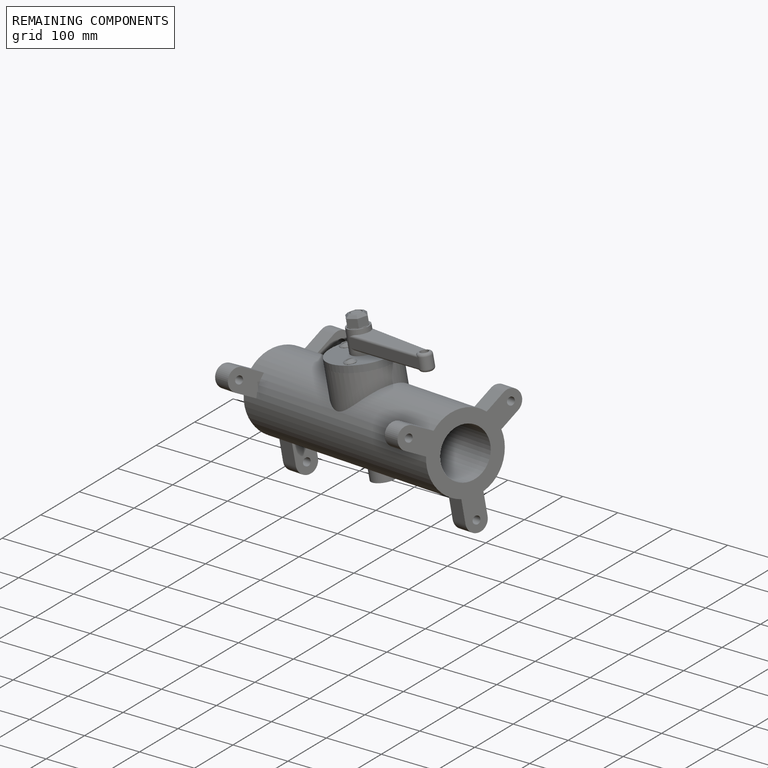
[diagram: remaining components — assembled]
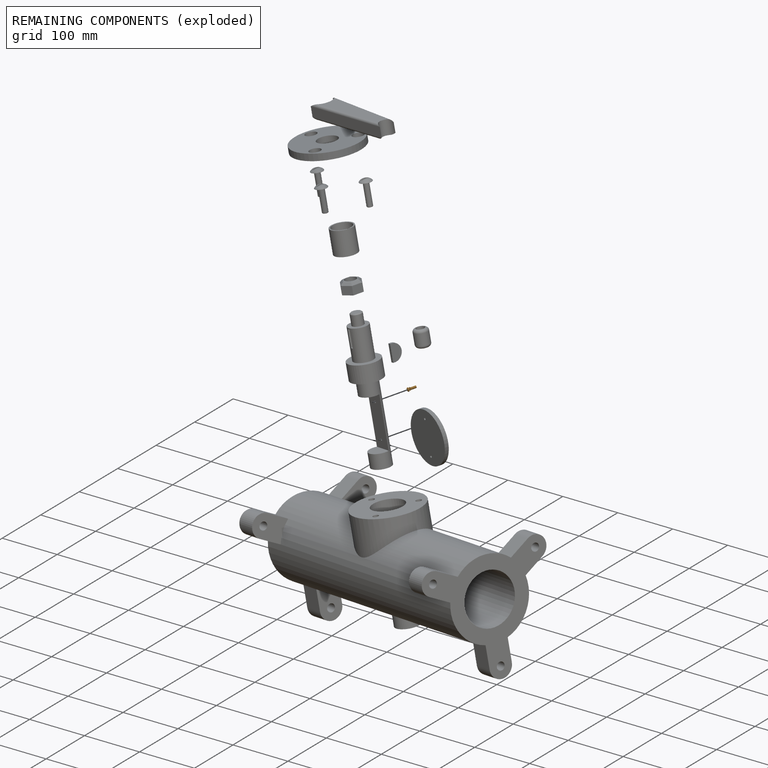
[diagram: remaining components — exploded]
REMAINING COMPONENTS (grouped) — the 2 components below fall outside the per-component tour by the significance rule stated above; both spotlight views highlight the whole group.
  P3: bounding box 16.3 x 7.7 x 7.0 mm, volume 301 mm^3. Held by: FASTENED mate "Fastened 3" to P6.
  P8: bounding box 16.3 x 7.7 x 7.0 mm, volume 301 mm^3. Held by: FASTENED mate "Fastened 1" to P6.
PROVENANCE & LICENSES
Assembly (occurrences, transforms, mates, per-part STEP geometry): AutoMate dataset, Zenodo record 7776208, CC0.
Construction recipes: CADFS (HuggingFace VladPyatov/CADFS, CC-BY-4.0, layered over the ABC dataset), FeatureScript reconstruction programs keyed by ABC model id.
Join: ABC meta listings map ABC model id -> Onshape documentId; within a shared document, parts are matched by geometric signature (bounding-box dims + volume at 0.1% relative tolerance, exact B-rep face/solid counts).
Verification: 3 of this assembly's 14 components carry a recipe attachment, and every attachment is mesh-verified: the CADFS STEP and the AutoMate member STEP were compared as meshes in their shared local frame (symmetric sampled-point-to-mesh distance); worst across the 3 attachments: below the mesh-comparison resolution (tessellation chordal tolerance ~0.191 mm) on a 127 mm part.
Renders: orthographic iso camera (az 35 / el 25); the floor grid conveys scale (grid pitch printed in each image; no ruler). In the exploded view each component is displaced by its stored offset vector: the offsets alone carry the explosion direction (mate normal/axis signs are not orientation cues and do not encode it), and separation distances are assigned per mate-chain, not proportionally to assembly-order depth.
